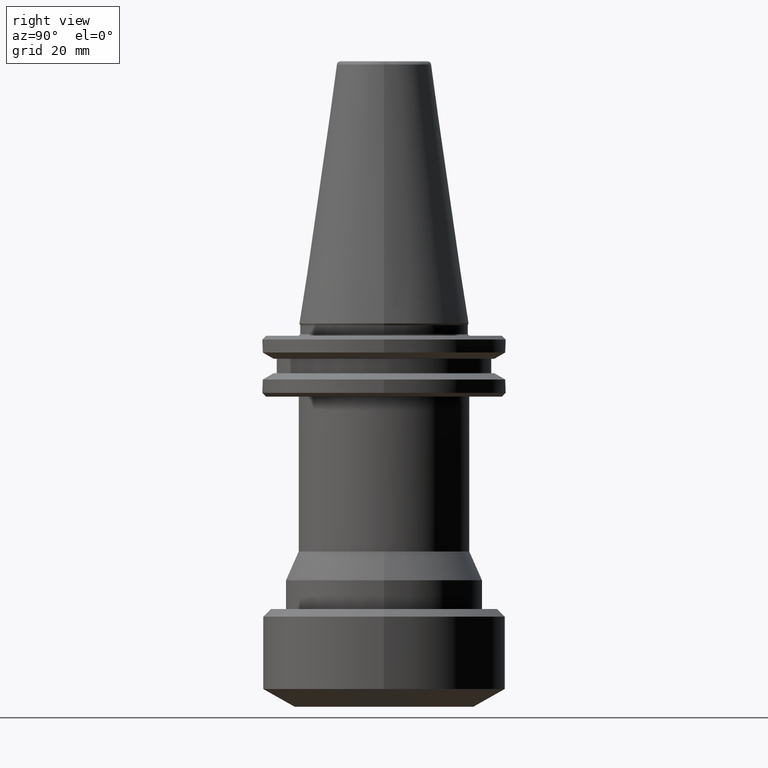
[diagram: clean part render]
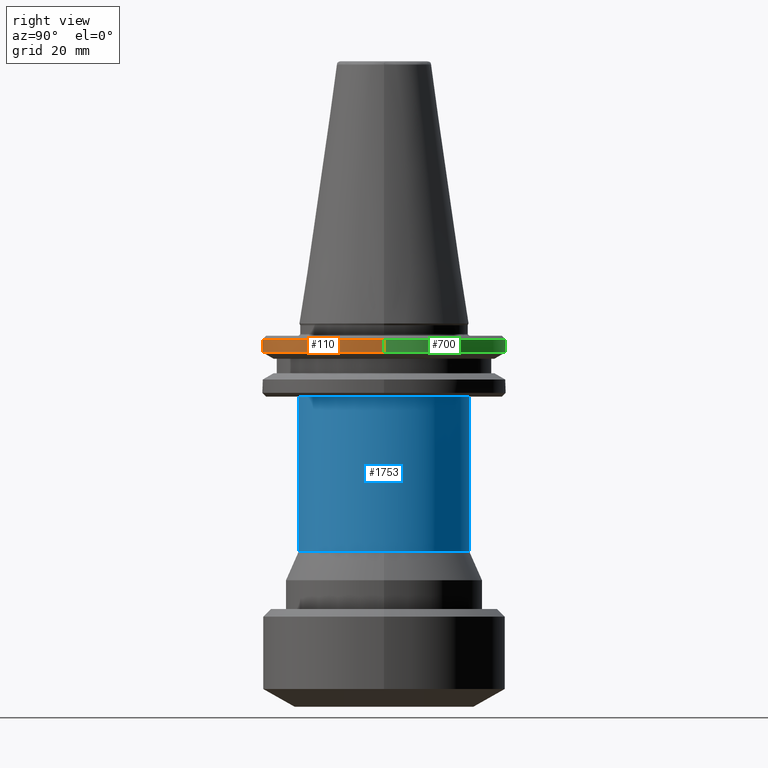
[diagram: same view with three faces highlighted in distinct colors, each labeled with its STEP entity id]
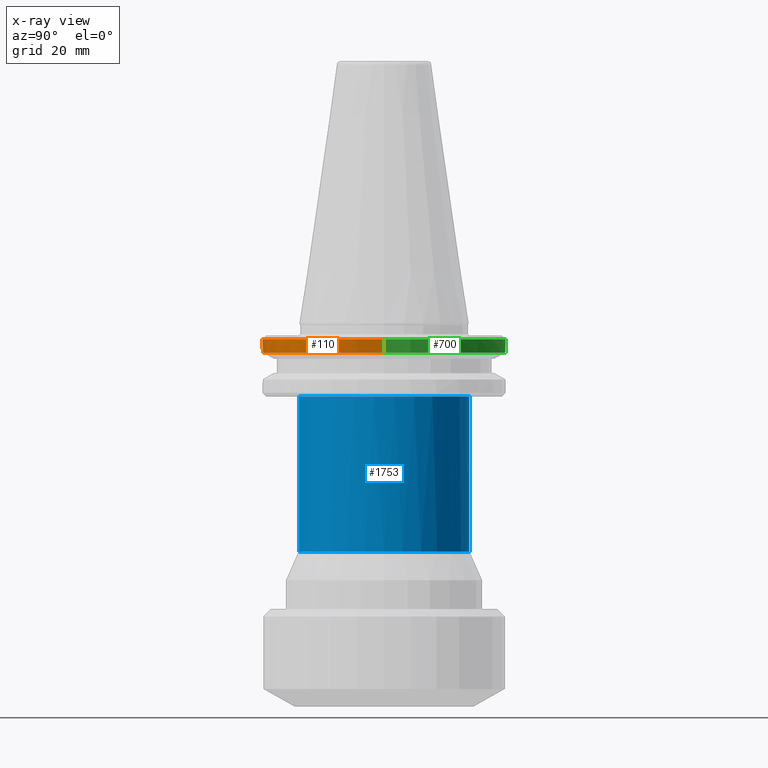
[diagram: x-ray of the same camera — body ghosted, the three highlighted faces saturated]
A machine part, right view with three faces highlighted in distinct colors.
The next image is the same camera in x-ray (body ghosted, the three faces saturated) — at least one of them is partly hidden behind the body in this view.
Their STEP definitions:

[orange] entity #110 — the highlighted cylindrical surface (partial cylindrical patch) has radius 31.75 mm, axis along (0, 0, 1).
#1 = DIRECTION ( 'NONE',  ( 0.0000000000000000000, 0.0000000000000000000, 1.000000000000000000 ) ) ;
#31 = EDGE_CURVE ( 'NONE', #728, #118, #892, .T. ) ;
#36 = CIRCLE ( 'NONE', #1754, 31.75000000000005700 ) ;
#43 = ORIENTED_EDGE ( 'NONE', *, *, #959, .T. ) ;
#67 = VERTEX_POINT ( 'NONE', #1389 ) ;
#80 = DIRECTION ( 'NONE',  ( -0.0000000000000000000, -0.0000000000000000000, -1.000000000000000000 ) ) ;
#93 = VECTOR ( 'NONE', #144, 1000.000000000000000 ) ;
#105 = EDGE_CURVE ( 'NONE', #67, #1243, #1494, .T. ) ;
#110 = ADVANCED_FACE ( 'NONE', ( #646 ), #1341, .T. ) ;
#118 = VERTEX_POINT ( 'NONE', #1642 ) ;
#127 = DIRECTION ( 'NONE',  ( -0.0000000000000000000, -0.0000000000000000000, 1.000000000000000000 ) ) ;
#130 = AXIS2_PLACEMENT_3D ( 'NONE', #1131, #80, #1691 ) ;
#138 = LINE ( 'NONE', #752, #93 ) ;
#144 = DIRECTION ( 'NONE',  ( 0.0000000000000000000, 0.0000000000000000000, 1.000000000000000000 ) ) ;
#159 = CARTESIAN_POINT ( 'NONE',  ( 0.0000000000000000000, 0.0000000000000000000, -7.578163358000000300 ) ) ;
#166 = CIRCLE ( 'NONE', #1649, 31.74999999995411300 ) ;
#176 = ORIENTED_EDGE ( 'NONE', *, *, #31, .F. ) ;
#253 = CARTESIAN_POINT ( 'NONE',  ( 0.0000000000000000000, 0.0000000000000000000, -4.200000000000036600 ) ) ;
#272 = VERTEX_POINT ( 'NONE', #1479 ) ;
#337 = AXIS2_PLACEMENT_3D ( 'NONE', #929, #778, #767 ) ;
#379 = VECTOR ( 'NONE', #886, 1000.000000000000000 ) ;
#409 = DIRECTION ( 'NONE',  ( 1.000000000000000000, 0.0000000000000000000, 0.0000000000000000000 ) ) ;
#410 = LINE ( 'NONE', #1318, #379 ) ;
#487 = AXIS2_PLACEMENT_3D ( 'NONE', #1569, #696, #1714 ) ;
#505 = ORIENTED_EDGE ( 'NONE', *, *, #1636, .T. ) ;
#566 = AXIS2_PLACEMENT_3D ( 'NONE', #253, #1294, #409 ) ;
#646 = FACE_OUTER_BOUND ( 'NONE', #944, .T. ) ;
#663 = CARTESIAN_POINT ( 'NONE',  ( 3.888253587292851200E-015, -31.75000000000003600, -4.200000000000036600 ) ) ;
#675 = CARTESIAN_POINT ( 'NONE',  ( 8.717907036256404400, -30.52966748656525900, -7.578163358548543700 ) ) ;
#677 = EDGE_CURVE ( 'NONE', #1628, #1439, #683, .T. ) ;
#683 = CIRCLE ( 'NONE', #566, 31.75000000000005700 ) ;
#696 = DIRECTION ( 'NONE',  ( -0.0000000000000000000, -0.0000000000000000000, 1.000000000000000000 ) ) ;
#728 = VERTEX_POINT ( 'NONE', #1581 ) ;
#736 = DIRECTION ( 'NONE',  ( -0.0000000000000000000, -0.0000000000000000000, -1.000000000000000000 ) ) ;
#752 = CARTESIAN_POINT ( 'NONE',  ( -31.75000000000000000, 3.888253587292846500E-015, -7.578163358000000300 ) ) ;
#759 = VERTEX_POINT ( 'NONE', #1450 ) ;
#767 = DIRECTION ( 'NONE',  ( 1.000000000000000000, 0.0000000000000000000, 0.0000000000000000000 ) ) ;
#778 = DIRECTION ( 'NONE',  ( -0.0000000000000000000, -0.0000000000000000000, 1.000000000000000000 ) ) ;
#800 = VERTEX_POINT ( 'NONE', #1797 ) ;
#841 = CARTESIAN_POINT ( 'NONE',  ( 0.0000000000000000000, 0.0000000000000000000, -7.578163357929321700 ) ) ;
#853 = AXIS2_PLACEMENT_3D ( 'NONE', #159, #1, #1775 ) ;
#886 = DIRECTION ( 'NONE',  ( 0.0000000000000000000, 0.0000000000000000000, 1.000000000000000000 ) ) ;
#892 = CIRCLE ( 'NONE', #130, 31.75000000039750200 ) ;
#929 = CARTESIAN_POINT ( 'NONE',  ( 0.0000000000000000000, 0.0000000000000000000, -7.578163357943756400 ) ) ;
#944 = EDGE_LOOP ( 'NONE', ( #1786, #176, #43, #1397, #1077, #1814, #505, #1886, #1588 ) ) ;
#957 = AXIS2_PLACEMENT_3D ( 'NONE', #841, #1846, #991 ) ;
#959 = EDGE_CURVE ( 'NONE', #728, #759, #1115, .T. ) ;
#991 = DIRECTION ( 'NONE',  ( 1.000000000000000000, 0.0000000000000000000, 0.0000000000000000000 ) ) ;
#1048 = CARTESIAN_POINT ( 'NONE',  ( 0.0000000000000000000, 0.0000000000000000000, -4.200000000000036600 ) ) ;
#1077 = ORIENTED_EDGE ( 'NONE', *, *, #105, .T. ) ;
#1115 = CIRCLE ( 'NONE', #487, 31.75000000000005700 ) ;
#1131 = CARTESIAN_POINT ( 'NONE',  ( 0.0000000000000000000, 0.0000000000000000000, -7.578163357770503000 ) ) ;
#1177 = CARTESIAN_POINT ( 'NONE',  ( -31.75000000000005700, 3.888253587292853600E-015, -4.200000000000036600 ) ) ;
#1188 = DIRECTION ( 'NONE',  ( 1.000000000000000000, 0.0000000000000000000, 0.0000000000000000000 ) ) ;
#1243 = VERTEX_POINT ( 'NONE', #675 ) ;
#1282 = EDGE_CURVE ( 'NONE', #759, #67, #1336, .T. ) ;
#1294 = DIRECTION ( 'NONE',  ( -0.0000000000000000000, -0.0000000000000000000, 1.000000000000000000 ) ) ;
#1318 = CARTESIAN_POINT ( 'NONE',  ( 31.75000000000000000, 0.0000000000000000000, -7.578163358000000300 ) ) ;
#1336 = CIRCLE ( 'NONE', #957, 31.75000000000000000 ) ;
#1341 = CYLINDRICAL_SURFACE ( 'NONE', #853, 31.75000000000000000 ) ;
#1389 = CARTESIAN_POINT ( 'NONE',  ( -8.600431038069855200, -30.56296919408950800, -7.578163357969574900 ) ) ;
#1397 = ORIENTED_EDGE ( 'NONE', *, *, #1282, .T. ) ;
#1439 = VERTEX_POINT ( 'NONE', #663 ) ;
#1450 = CARTESIAN_POINT ( 'NONE',  ( -18.50000000000000000, -25.80334280677388700, -7.578163357929296000 ) ) ;
#1479 = CARTESIAN_POINT ( 'NONE',  ( 31.74999999995411300, 0.0000000000000000000, -7.578163358026492900 ) ) ;
#1494 = CIRCLE ( 'NONE', #337, 31.75000000000005700 ) ;
#1569 = CARTESIAN_POINT ( 'NONE',  ( 0.0000000000000000000, 0.0000000000000000000, -7.578163357943756400 ) ) ;
#1581 = CARTESIAN_POINT ( 'NONE',  ( -25.80334280698913600, -18.50000000000000000, -7.578163357770503000 ) ) ;
#1588 = ORIENTED_EDGE ( 'NONE', *, *, #677, .F. ) ;
#1606 = CARTESIAN_POINT ( 'NONE',  ( 0.0000000000000000000, 0.0000000000000000000, -7.578163358026492900 ) ) ;
#1628 = VERTEX_POINT ( 'NONE', #1177 ) ;
#1636 = EDGE_CURVE ( 'NONE', #272, #800, #410, .T. ) ;
#1642 = CARTESIAN_POINT ( 'NONE',  ( -31.75000000039750200, 3.888253587341526300E-015, -7.578163357770503000 ) ) ;
#1649 = AXIS2_PLACEMENT_3D ( 'NONE', #1606, #736, #1752 ) ;
#1691 = DIRECTION ( 'NONE',  ( 1.000000000000000000, 1.776356839400250500E-015, 0.0000000000000000000 ) ) ;
#1714 = DIRECTION ( 'NONE',  ( 1.000000000000000000, 0.0000000000000000000, 0.0000000000000000000 ) ) ;
#1752 = DIRECTION ( 'NONE',  ( 1.000000000000000000, 0.0000000000000000000, 0.0000000000000000000 ) ) ;
#1754 = AXIS2_PLACEMENT_3D ( 'NONE', #1048, #127, #1188 ) ;
#1775 = DIRECTION ( 'NONE',  ( 1.000000000000000000, 0.0000000000000000000, 0.0000000000000000000 ) ) ;
#1786 = ORIENTED_EDGE ( 'NONE', *, *, #1930, .F. ) ;
#1797 = CARTESIAN_POINT ( 'NONE',  ( 31.75000000000005700, 0.0000000000000000000, -4.200000000000036600 ) ) ;
#1814 = ORIENTED_EDGE ( 'NONE', *, *, #1837, .F. ) ;
#1837 = EDGE_CURVE ( 'NONE', #272, #1243, #166, .T. ) ;
#1846 = DIRECTION ( 'NONE',  ( 0.0000000000000000000, 0.0000000000000000000, 1.000000000000000000 ) ) ;
#1850 = EDGE_CURVE ( 'NONE', #1439, #800, #36, .T. ) ;
#1886 = ORIENTED_EDGE ( 'NONE', *, *, #1850, .F. ) ;
#1930 = EDGE_CURVE ( 'NONE', #118, #1628, #138, .T. ) ;

[blue] entity #1753 — the highlighted cylindrical surface (partial cylindrical patch) has radius 22.25 mm, axis along (0, -0, 1).
#20 = VECTOR ( 'NONE', #1000, 1000.000000000000000 ) ;
#113 = LINE ( 'NONE', #543, #20 ) ;
#115 = EDGE_CURVE ( 'NONE', #1011, #1750, #572, .T. ) ;
#167 = DIRECTION ( 'NONE',  ( 0.0000000000000000000, -7.796510004390144800E-017, 1.000000000000000000 ) ) ;
#186 = FACE_OUTER_BOUND ( 'NONE', #216, .T. ) ;
#199 = AXIS2_PLACEMENT_3D ( 'NONE', #672, #1684, #829 ) ;
#205 = CYLINDRICAL_SURFACE ( 'NONE', #1370, 22.25000000000000000 ) ;
#216 = EDGE_LOOP ( 'NONE', ( #1249, #1889, #1539, #1586, #494 ) ) ;
#276 = CARTESIAN_POINT ( 'NONE',  ( 0.0000000000000000000, 0.0000000000000000000, -59.49422577800009300 ) ) ;
#281 = EDGE_CURVE ( 'NONE', #1607, #970, #722, .T. ) ;
#295 = CARTESIAN_POINT ( 'NONE',  ( 0.0000000000000000000, 0.0000000000000000000, -29.49422577800000100 ) ) ;
#359 = EDGE_CURVE ( 'NONE', #1011, #1607, #1423, .T. ) ;
#403 = AXIS2_PLACEMENT_3D ( 'NONE', #276, #1739, #427 ) ;
#427 = DIRECTION ( 'NONE',  ( 1.000000000000000000, 0.0000000000000000000, 0.0000000000000000000 ) ) ;
#446 = DIRECTION ( 'NONE',  ( 0.0000000000000000000, -7.796510004390144800E-017, 1.000000000000000000 ) ) ;
#494 = ORIENTED_EDGE ( 'NONE', *, *, #115, .F. ) ;
#543 = CARTESIAN_POINT ( 'NONE',  ( 2.724839128102860600E-015, 22.25000000000000000, -29.49422577799999700 ) ) ;
#572 = LINE ( 'NONE', #1497, #1763 ) ;
#584 = CARTESIAN_POINT ( 'NONE',  ( 2.724839128102860600E-015, 22.25000000000000000, -19.10000000000000500 ) ) ;
#672 = CARTESIAN_POINT ( 'NONE',  ( 0.0000000000000000000, -8.103868526606689900E-016, -19.10000000000000500 ) ) ;
#722 = CIRCLE ( 'NONE', #1425, 22.25000000000000000 ) ;
#829 = DIRECTION ( 'NONE',  ( 0.0000000000000000000, -1.000000000000000000, 0.0000000000000000000 ) ) ;
#851 = CARTESIAN_POINT ( 'NONE',  ( 2.724839128102860600E-015, 22.25000000000000000, -59.49422577800009300 ) ) ;
#966 = EDGE_CURVE ( 'NONE', #970, #1851, #113, .T. ) ;
#970 = VERTEX_POINT ( 'NONE', #851 ) ;
#1000 = DIRECTION ( 'NONE',  ( 0.0000000000000000000, -7.796510004390144800E-017, 1.000000000000000000 ) ) ;
#1011 = VERTEX_POINT ( 'NONE', #1207 ) ;
#1207 = CARTESIAN_POINT ( 'NONE',  ( 0.0000000000000000000, -22.25000000000000000, -59.49422577800009300 ) ) ;
#1249 = ORIENTED_EDGE ( 'NONE', *, *, #359, .T. ) ;
#1317 = DIRECTION ( 'NONE',  ( -0.0000000000000000000, -0.0000000000000000000, 1.000000000000000000 ) ) ;
#1334 = CARTESIAN_POINT ( 'NONE',  ( 0.0000000000000000000, -22.25000000000000000, -19.10000000000000500 ) ) ;
#1370 = AXIS2_PLACEMENT_3D ( 'NONE', #295, #446, #1912 ) ;
#1423 = CIRCLE ( 'NONE', #403, 22.25000000000000000 ) ;
#1425 = AXIS2_PLACEMENT_3D ( 'NONE', #1734, #1317, #1927 ) ;
#1449 = EDGE_CURVE ( 'NONE', #1750, #1851, #1827, .T. ) ;
#1497 = CARTESIAN_POINT ( 'NONE',  ( 0.0000000000000000000, -22.25000000000000000, -29.49422577800000400 ) ) ;
#1539 = ORIENTED_EDGE ( 'NONE', *, *, #966, .T. ) ;
#1586 = ORIENTED_EDGE ( 'NONE', *, *, #1449, .F. ) ;
#1596 = CARTESIAN_POINT ( 'NONE',  ( 22.25000000000000000, 2.939152317953647900E-015, -59.49422577800009300 ) ) ;
#1607 = VERTEX_POINT ( 'NONE', #1596 ) ;
#1684 = DIRECTION ( 'NONE',  ( 0.0000000000000000000, -7.796510004390144800E-017, 1.000000000000000000 ) ) ;
#1734 = CARTESIAN_POINT ( 'NONE',  ( 0.0000000000000000000, 0.0000000000000000000, -59.49422577800009300 ) ) ;
#1739 = DIRECTION ( 'NONE',  ( -0.0000000000000000000, -0.0000000000000000000, 1.000000000000000000 ) ) ;
#1750 = VERTEX_POINT ( 'NONE', #1334 ) ;
#1753 = ADVANCED_FACE ( 'NONE', ( #186 ), #205, .T. ) ;
#1763 = VECTOR ( 'NONE', #167, 1000.000000000000000 ) ;
#1827 = CIRCLE ( 'NONE', #199, 22.25000000000000000 ) ;
#1851 = VERTEX_POINT ( 'NONE', #584 ) ;
#1889 = ORIENTED_EDGE ( 'NONE', *, *, #281, .T. ) ;
#1912 = DIRECTION ( 'NONE',  ( 0.0000000000000000000, -1.000000000000000000, -1.559302000878029000E-016 ) ) ;
#1927 = DIRECTION ( 'NONE',  ( 1.000000000000000000, 0.0000000000000000000, 0.0000000000000000000 ) ) ;

[green] entity #700 — the highlighted cylindrical surface (partial cylindrical patch) has radius 31.75 mm, axis along (0, 0, 1).
#16 = FACE_OUTER_BOUND ( 'NONE', #554, .T. ) ;
#61 = CYLINDRICAL_SURFACE ( 'NONE', #878, 31.75000000000000000 ) ;
#73 = CARTESIAN_POINT ( 'NONE',  ( 0.0000000000000000000, 0.0000000000000000000, -4.200000000000036600 ) ) ;
#93 = VECTOR ( 'NONE', #144, 1000.000000000000000 ) ;
#118 = VERTEX_POINT ( 'NONE', #1642 ) ;
#138 = LINE ( 'NONE', #752, #93 ) ;
#144 = DIRECTION ( 'NONE',  ( 0.0000000000000000000, 0.0000000000000000000, 1.000000000000000000 ) ) ;
#175 = ORIENTED_EDGE ( 'NONE', *, *, #1636, .F. ) ;
#179 = AXIS2_PLACEMENT_3D ( 'NONE', #73, #1138, #226 ) ;
#210 = CARTESIAN_POINT ( 'NONE',  ( 0.0000000000000000000, 0.0000000000000000000, -4.200000000000036600 ) ) ;
#219 = ORIENTED_EDGE ( 'NONE', *, *, #1085, .F. ) ;
#226 = DIRECTION ( 'NONE',  ( 1.000000000000000000, 0.0000000000000000000, 0.0000000000000000000 ) ) ;
#272 = VERTEX_POINT ( 'NONE', #1479 ) ;
#288 = AXIS2_PLACEMENT_3D ( 'NONE', #535, #1560, #690 ) ;
#333 = CIRCLE ( 'NONE', #890, 31.74999999995411300 ) ;
#371 = DIRECTION ( 'NONE',  ( 1.000000000000000000, 0.0000000000000000000, 0.0000000000000000000 ) ) ;
#379 = VECTOR ( 'NONE', #886, 1000.000000000000000 ) ;
#384 = CARTESIAN_POINT ( 'NONE',  ( 0.0000000000000000000, 0.0000000000000000000, -7.578163357943756400 ) ) ;
#410 = LINE ( 'NONE', #1318, #379 ) ;
#428 = CARTESIAN_POINT ( 'NONE',  ( 0.0000000000000000000, 0.0000000000000000000, -7.578163358026492900 ) ) ;
#531 = DIRECTION ( 'NONE',  ( 1.000000000000000000, 0.0000000000000000000, 0.0000000000000000000 ) ) ;
#535 = CARTESIAN_POINT ( 'NONE',  ( 0.0000000000000000000, 0.0000000000000000000, -7.578163357770503000 ) ) ;
#554 = EDGE_LOOP ( 'NONE', ( #1056, #1276, #1145, #219, #175, #1551, #1620 ) ) ;
#569 = VERTEX_POINT ( 'NONE', #1671 ) ;
#576 = DIRECTION ( 'NONE',  ( 1.000000000000000000, 8.881784197001252300E-016, 0.0000000000000000000 ) ) ;
#682 = CARTESIAN_POINT ( 'NONE',  ( 0.0000000000000000000, 31.75000000000003600, -4.200000000000036600 ) ) ;
#690 = DIRECTION ( 'NONE',  ( 1.000000000000000000, 0.0000000000000000000, 0.0000000000000000000 ) ) ;
#700 = ADVANCED_FACE ( 'NONE', ( #16 ), #61, .T. ) ;
#752 = CARTESIAN_POINT ( 'NONE',  ( -31.75000000000000000, 3.888253587292846500E-015, -7.578163358000000300 ) ) ;
#760 = CIRCLE ( 'NONE', #1281, 31.75000000000005700 ) ;
#800 = VERTEX_POINT ( 'NONE', #1797 ) ;
#878 = AXIS2_PLACEMENT_3D ( 'NONE', #1154, #1728, #1721 ) ;
#886 = DIRECTION ( 'NONE',  ( 0.0000000000000000000, 0.0000000000000000000, 1.000000000000000000 ) ) ;
#890 = AXIS2_PLACEMENT_3D ( 'NONE', #428, #1455, #576 ) ;
#900 = EDGE_CURVE ( 'NONE', #1527, #1628, #1677, .T. ) ;
#909 = EDGE_CURVE ( 'NONE', #118, #1925, #1509, .T. ) ;
#1056 = ORIENTED_EDGE ( 'NONE', *, *, #909, .F. ) ;
#1085 = EDGE_CURVE ( 'NONE', #800, #1527, #760, .T. ) ;
#1138 = DIRECTION ( 'NONE',  ( -0.0000000000000000000, -0.0000000000000000000, 1.000000000000000000 ) ) ;
#1145 = ORIENTED_EDGE ( 'NONE', *, *, #900, .F. ) ;
#1154 = CARTESIAN_POINT ( 'NONE',  ( 0.0000000000000000000, 0.0000000000000000000, -7.578163358000000300 ) ) ;
#1157 = EDGE_CURVE ( 'NONE', #569, #1925, #1529, .T. ) ;
#1177 = CARTESIAN_POINT ( 'NONE',  ( -31.75000000000005700, 3.888253587292853600E-015, -4.200000000000036600 ) ) ;
#1200 = CARTESIAN_POINT ( 'NONE',  ( -8.717907037244783600, 30.52966748729179300, -7.578163357933951800 ) ) ;
#1257 = DIRECTION ( 'NONE',  ( -0.0000000000000000000, -0.0000000000000000000, 1.000000000000000000 ) ) ;
#1276 = ORIENTED_EDGE ( 'NONE', *, *, #1930, .T. ) ;
#1281 = AXIS2_PLACEMENT_3D ( 'NONE', #210, #1257, #371 ) ;
#1318 = CARTESIAN_POINT ( 'NONE',  ( 31.75000000000000000, 0.0000000000000000000, -7.578163358000000300 ) ) ;
#1411 = DIRECTION ( 'NONE',  ( -0.0000000000000000000, -0.0000000000000000000, 1.000000000000000000 ) ) ;
#1455 = DIRECTION ( 'NONE',  ( -0.0000000000000000000, -0.0000000000000000000, -1.000000000000000000 ) ) ;
#1479 = CARTESIAN_POINT ( 'NONE',  ( 31.74999999995411300, 0.0000000000000000000, -7.578163358026492900 ) ) ;
#1509 = CIRCLE ( 'NONE', #288, 31.75000000039750200 ) ;
#1527 = VERTEX_POINT ( 'NONE', #682 ) ;
#1529 = CIRCLE ( 'NONE', #1655, 31.75000000000005700 ) ;
#1551 = ORIENTED_EDGE ( 'NONE', *, *, #1796, .F. ) ;
#1560 = DIRECTION ( 'NONE',  ( -0.0000000000000000000, -0.0000000000000000000, -1.000000000000000000 ) ) ;
#1620 = ORIENTED_EDGE ( 'NONE', *, *, #1157, .T. ) ;
#1628 = VERTEX_POINT ( 'NONE', #1177 ) ;
#1636 = EDGE_CURVE ( 'NONE', #272, #800, #410, .T. ) ;
#1642 = CARTESIAN_POINT ( 'NONE',  ( -31.75000000039750200, 3.888253587341526300E-015, -7.578163357770503000 ) ) ;
#1655 = AXIS2_PLACEMENT_3D ( 'NONE', #384, #1411, #531 ) ;
#1671 = CARTESIAN_POINT ( 'NONE',  ( 8.600431038050468000, 30.56296919405047400, -7.578163358029640600 ) ) ;
#1677 = CIRCLE ( 'NONE', #179, 31.75000000000005700 ) ;
#1721 = DIRECTION ( 'NONE',  ( 1.000000000000000000, 0.0000000000000000000, 0.0000000000000000000 ) ) ;
#1728 = DIRECTION ( 'NONE',  ( 0.0000000000000000000, 0.0000000000000000000, 1.000000000000000000 ) ) ;
#1796 = EDGE_CURVE ( 'NONE', #569, #272, #333, .T. ) ;
#1797 = CARTESIAN_POINT ( 'NONE',  ( 31.75000000000005700, 0.0000000000000000000, -4.200000000000036600 ) ) ;
#1925 = VERTEX_POINT ( 'NONE', #1200 ) ;
#1930 = EDGE_CURVE ( 'NONE', #118, #1628, #138, .T. ) ;